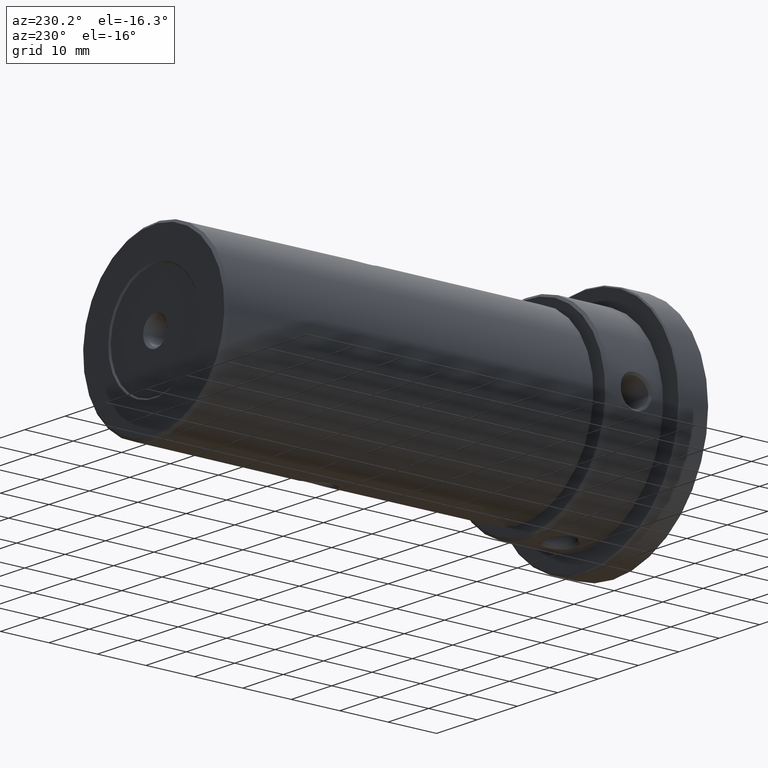
[diagram: clean part render]
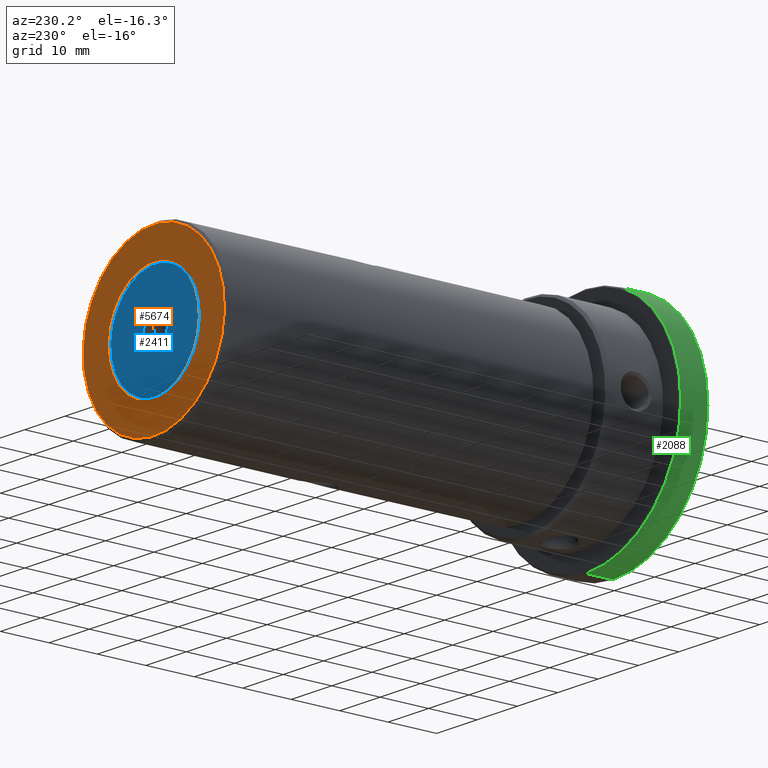
[diagram: same view with three faces highlighted in distinct colors, each labeled with its STEP entity id]
A machine part, auxiliary view with three faces highlighted in distinct colors.
Their STEP definitions:

[orange] entity #5674 — the highlighted planar face has unit normal (0, 1, 0).
#495 = PLANE ( 'NONE',  #2610 ) ;
#550 = FACE_OUTER_BOUND ( 'NONE', #5143, .T. ) ;
#568 = EDGE_CURVE ( 'NONE', #11479, #4742, #7038, .T. ) ;
#686 = CARTESIAN_POINT ( 'NONE',  ( 0.000000000000000000, 38.10000000000000142, 0.000000000000000000 ) ) ;
#698 = AXIS2_PLACEMENT_3D ( 'NONE', #9571, #5811, #7854 ) ;
#786 = CARTESIAN_POINT ( 'NONE',  ( 0.000000000000000000, 38.10000000000000142, 0.000000000000000000 ) ) ;
#1166 = AXIS2_PLACEMENT_3D ( 'NONE', #786, #7296, #11090 ) ;
#1642 = DIRECTION ( 'NONE',  ( 0.000000000000000000, 1.000000000000000000, 0.000000000000000000 ) ) ;
#1920 = EDGE_CURVE ( 'NONE', #8332, #7096, #10190, .T. ) ;
#2119 = CARTESIAN_POINT ( 'NONE',  ( 0.000000000000000000, 38.10000000000000142, 11.30000000000000426 ) ) ;
#2603 = CIRCLE ( 'NONE', #5530, 11.30000000000000426 ) ;
#2610 = AXIS2_PLACEMENT_3D ( 'NONE', #9777, #5952, #11661 ) ;
#3268 = DIRECTION ( 'NONE',  ( -0.000000000000000000, -1.000000000000000000, -0.000000000000000000 ) ) ;
#3366 = ORIENTED_EDGE ( 'NONE', *, *, #11658, .T. ) ;
#3460 = EDGE_LOOP ( 'NONE', ( #10479, #8734 ) ) ;
#4019 = ORIENTED_EDGE ( 'NONE', *, *, #1920, .T. ) ;
#4742 = VERTEX_POINT ( 'NONE', #11925 ) ;
#4914 = CARTESIAN_POINT ( 'NONE',  ( 2.173748068486552430E-15, 38.10000000000000142, 17.50000000000001066 ) ) ;
#5143 = EDGE_LOOP ( 'NONE', ( #4019, #3366 ) ) ;
#5530 = AXIS2_PLACEMENT_3D ( 'NONE', #686, #3268, #11006 ) ;
#5674 = ADVANCED_FACE ( 'NONE', ( #550, #7940 ), #495, .T. ) ;
#5811 = DIRECTION ( 'NONE',  ( 0.000000000000000000, 1.000000000000000000, 0.000000000000000000 ) ) ;
#5952 = DIRECTION ( 'NONE',  ( 0.000000000000000000, 1.000000000000000000, 0.000000000000000000 ) ) ;
#6581 = CIRCLE ( 'NONE', #698, 17.50000000000001066 ) ;
#7038 = CIRCLE ( 'NONE', #1166, 11.30000000000000426 ) ;
#7051 = DIRECTION ( 'NONE',  ( 0.000000000000000000, 0.000000000000000000, 1.000000000000000000 ) ) ;
#7096 = VERTEX_POINT ( 'NONE', #4914 ) ;
#7296 = DIRECTION ( 'NONE',  ( -0.000000000000000000, -1.000000000000000000, -0.000000000000000000 ) ) ;
#7854 = DIRECTION ( 'NONE',  ( 0.000000000000000000, 0.000000000000000000, 1.000000000000000000 ) ) ;
#7940 = FACE_BOUND ( 'NONE', #3460, .T. ) ;
#8332 = VERTEX_POINT ( 'NONE', #11506 ) ;
#8734 = ORIENTED_EDGE ( 'NONE', *, *, #9354, .T. ) ;
#9138 = CARTESIAN_POINT ( 'NONE',  ( 0.000000000000000000, 38.10000000000000142, 0.000000000000000000 ) ) ;
#9354 = EDGE_CURVE ( 'NONE', #4742, #11479, #2603, .T. ) ;
#9409 = AXIS2_PLACEMENT_3D ( 'NONE', #9138, #1642, #7051 ) ;
#9571 = CARTESIAN_POINT ( 'NONE',  ( 0.000000000000000000, 38.10000000000000142, 0.000000000000000000 ) ) ;
#9777 = CARTESIAN_POINT ( 'NONE',  ( 0.000000000000000000, 38.10000000000000142, 0.000000000000000000 ) ) ;
#10190 = CIRCLE ( 'NONE', #9409, 17.50000000000001066 ) ;
#10479 = ORIENTED_EDGE ( 'NONE', *, *, #568, .T. ) ;
#11006 = DIRECTION ( 'NONE',  ( 0.000000000000000000, 0.000000000000000000, 1.000000000000000000 ) ) ;
#11090 = DIRECTION ( 'NONE',  ( 0.000000000000000000, 0.000000000000000000, 1.000000000000000000 ) ) ;
#11479 = VERTEX_POINT ( 'NONE', #2119 ) ;
#11506 = CARTESIAN_POINT ( 'NONE',  ( 0.000000000000000000, 38.10000000000000142, -17.50000000000001066 ) ) ;
#11658 = EDGE_CURVE ( 'NONE', #7096, #8332, #6581, .T. ) ;
#11661 = DIRECTION ( 'NONE',  ( 0.000000000000000000, -0.000000000000000000, 1.000000000000000000 ) ) ;
#11925 = CARTESIAN_POINT ( 'NONE',  ( 1.383850883036509659E-15, 38.10000000000000142, -11.30000000000000426 ) ) ;

[blue] entity #2411 — the highlighted planar face has unit normal (0, 1, 0).
#143 = CIRCLE ( 'NONE', #724, 11.00000000000000178 ) ;
#183 = CARTESIAN_POINT ( 'NONE',  ( 1.365481181049299032E-15, 37.79999999999999716, -11.00000000000000178 ) ) ;
#286 = FACE_OUTER_BOUND ( 'NONE', #5278, .T. ) ;
#337 = VERTEX_POINT ( 'NONE', #7058 ) ;
#716 = CARTESIAN_POINT ( 'NONE',  ( 0.000000000000000000, 37.79999999999999716, 0.000000000000000000 ) ) ;
#724 = AXIS2_PLACEMENT_3D ( 'NONE', #11427, #2966, #7828 ) ;
#832 = EDGE_CURVE ( 'NONE', #1260, #6029, #5859, .T. ) ;
#1260 = VERTEX_POINT ( 'NONE', #4919 ) ;
#1336 = DIRECTION ( 'NONE',  ( 0.000000000000000000, 0.000000000000000000, 1.000000000000000000 ) ) ;
#1466 = CARTESIAN_POINT ( 'NONE',  ( 0.000000000000000000, 37.79999999999999716, 0.000000000000000000 ) ) ;
#1555 = VERTEX_POINT ( 'NONE', #183 ) ;
#2041 = EDGE_CURVE ( 'NONE', #337, #1555, #8233, .T. ) ;
#2411 = ADVANCED_FACE ( 'NONE', ( #5867, #286 ), #3102, .T. ) ;
#2966 = DIRECTION ( 'NONE',  ( 0.000000000000000000, 1.000000000000000000, 0.000000000000000000 ) ) ;
#3102 = PLANE ( 'NONE',  #7979 ) ;
#3308 = AXIS2_PLACEMENT_3D ( 'NONE', #7098, #10841, #1336 ) ;
#4304 = EDGE_CURVE ( 'NONE', #6029, #1260, #9547, .T. ) ;
#4378 = CARTESIAN_POINT ( 'NONE',  ( 3.673940397442062826E-16, 37.79999999999999716, -3.000000000000002665 ) ) ;
#4919 = CARTESIAN_POINT ( 'NONE',  ( 0.000000000000000000, 37.79999999999999716, 3.000000000000002665 ) ) ;
#5278 = EDGE_LOOP ( 'NONE', ( #11411, #5804 ) ) ;
#5604 = AXIS2_PLACEMENT_3D ( 'NONE', #1466, #10123, #7232 ) ;
#5804 = ORIENTED_EDGE ( 'NONE', *, *, #10012, .T. ) ;
#5859 = CIRCLE ( 'NONE', #3308, 3.000000000000002665 ) ;
#5867 = FACE_BOUND ( 'NONE', #8883, .T. ) ;
#6029 = VERTEX_POINT ( 'NONE', #4378 ) ;
#6389 = ORIENTED_EDGE ( 'NONE', *, *, #832, .T. ) ;
#7058 = CARTESIAN_POINT ( 'NONE',  ( 0.000000000000000000, 37.79999999999999716, 11.00000000000000178 ) ) ;
#7098 = CARTESIAN_POINT ( 'NONE',  ( 0.000000000000000000, 37.79999999999999716, 0.000000000000000000 ) ) ;
#7232 = DIRECTION ( 'NONE',  ( 0.000000000000000000, 0.000000000000000000, 1.000000000000000000 ) ) ;
#7828 = DIRECTION ( 'NONE',  ( 0.000000000000000000, 0.000000000000000000, 1.000000000000000000 ) ) ;
#7979 = AXIS2_PLACEMENT_3D ( 'NONE', #11511, #11336, #10656 ) ;
#8162 = DIRECTION ( 'NONE',  ( 0.000000000000000000, 1.000000000000000000, 0.000000000000000000 ) ) ;
#8221 = DIRECTION ( 'NONE',  ( 0.000000000000000000, 0.000000000000000000, 1.000000000000000000 ) ) ;
#8233 = CIRCLE ( 'NONE', #11123, 11.00000000000000178 ) ;
#8883 = EDGE_LOOP ( 'NONE', ( #6389, #10626 ) ) ;
#9547 = CIRCLE ( 'NONE', #5604, 3.000000000000002665 ) ;
#10012 = EDGE_CURVE ( 'NONE', #1555, #337, #143, .T. ) ;
#10123 = DIRECTION ( 'NONE',  ( -0.000000000000000000, -1.000000000000000000, -0.000000000000000000 ) ) ;
#10626 = ORIENTED_EDGE ( 'NONE', *, *, #4304, .T. ) ;
#10656 = DIRECTION ( 'NONE',  ( 0.000000000000000000, -0.000000000000000000, 1.000000000000000000 ) ) ;
#10841 = DIRECTION ( 'NONE',  ( -0.000000000000000000, -1.000000000000000000, -0.000000000000000000 ) ) ;
#11123 = AXIS2_PLACEMENT_3D ( 'NONE', #716, #8162, #8221 ) ;
#11336 = DIRECTION ( 'NONE',  ( 0.000000000000000000, 1.000000000000000000, 0.000000000000000000 ) ) ;
#11411 = ORIENTED_EDGE ( 'NONE', *, *, #2041, .T. ) ;
#11427 = CARTESIAN_POINT ( 'NONE',  ( 0.000000000000000000, 37.79999999999999716, 0.000000000000000000 ) ) ;
#11511 = CARTESIAN_POINT ( 'NONE',  ( 0.000000000000000000, 37.79999999999999716, 0.000000000000000000 ) ) ;

[green] entity #2088 — the highlighted cylindrical surface (partial cylindrical patch) has radius 23.5 mm, axis along (-0, -1, -0).
#611 = EDGE_CURVE ( 'NONE', #6753, #11187, #11034, .T. ) ;
#701 = VERTEX_POINT ( 'NONE', #3342 ) ;
#841 = DIRECTION ( 'NONE',  ( 0.000000000000000000, 0.000000000000000000, -1.000000000000000000 ) ) ;
#1725 = DIRECTION ( 'NONE',  ( 0.000000000000000000, 0.000000000000000000, 1.000000000000000000 ) ) ;
#1818 = CARTESIAN_POINT ( 'NONE',  ( 0.000000000000000000, 6.099999999999999645, 0.000000000000000000 ) ) ;
#2088 = ADVANCED_FACE ( 'NONE', ( #8952 ), #5560, .T. ) ;
#3301 = DIRECTION ( 'NONE',  ( -0.000000000000000000, 1.000000000000000000, -0.000000000000000000 ) ) ;
#3342 = CARTESIAN_POINT ( 'NONE',  ( 0.000000000000000000, 0.2500000000000002220, -23.49999999999999645 ) ) ;
#3359 = CARTESIAN_POINT ( 'NONE',  ( 0.000000000000000000, 0.2500000000000002220, 0.000000000000000000 ) ) ;
#3385 = CIRCLE ( 'NONE', #4181, 23.49999999999999645 ) ;
#3696 = VECTOR ( 'NONE', #11160, 1000.000000000000000 ) ;
#3774 = ORIENTED_EDGE ( 'NONE', *, *, #6923, .T. ) ;
#3871 = LINE ( 'NONE', #9535, #7995 ) ;
#4181 = AXIS2_PLACEMENT_3D ( 'NONE', #8249, #11054, #1725 ) ;
#4586 = CARTESIAN_POINT ( 'NONE',  ( 2.877919977996279531E-15, 0.2500000000000002220, 23.49999999999999645 ) ) ;
#4956 = AXIS2_PLACEMENT_3D ( 'NONE', #3359, #3301, #7059 ) ;
#5065 = VERTEX_POINT ( 'NONE', #11972 ) ;
#5377 = EDGE_CURVE ( 'NONE', #5065, #701, #3871, .T. ) ;
#5560 = CYLINDRICAL_SURFACE ( 'NONE', #7204, 23.49999999999999645 ) ;
#5654 = DIRECTION ( 'NONE',  ( -0.000000000000000000, -1.000000000000000000, -0.000000000000000000 ) ) ;
#6186 = CARTESIAN_POINT ( 'NONE',  ( 2.877919977996279531E-15, 5.849999999999992539, 23.49999999999999645 ) ) ;
#6753 = VERTEX_POINT ( 'NONE', #6186 ) ;
#6923 = EDGE_CURVE ( 'NONE', #701, #11187, #10257, .T. ) ;
#7059 = DIRECTION ( 'NONE',  ( 0.000000000000000000, 0.000000000000000000, 1.000000000000000000 ) ) ;
#7204 = AXIS2_PLACEMENT_3D ( 'NONE', #1818, #7414, #841 ) ;
#7218 = ORIENTED_EDGE ( 'NONE', *, *, #8058, .T. ) ;
#7414 = DIRECTION ( 'NONE',  ( -0.000000000000000000, -1.000000000000000000, -0.000000000000000000 ) ) ;
#7422 = CARTESIAN_POINT ( 'NONE',  ( 2.877919977996279531E-15, 6.099999999999999645, 23.49999999999999645 ) ) ;
#7995 = VECTOR ( 'NONE', #5654, 1000.000000000000000 ) ;
#8058 = EDGE_CURVE ( 'NONE', #6753, #5065, #3385, .T. ) ;
#8249 = CARTESIAN_POINT ( 'NONE',  ( 0.000000000000000000, 5.849999999999992539, 0.000000000000000000 ) ) ;
#8952 = FACE_OUTER_BOUND ( 'NONE', #11868, .T. ) ;
#9535 = CARTESIAN_POINT ( 'NONE',  ( 0.000000000000000000, 6.099999999999999645, -23.49999999999999645 ) ) ;
#10257 = CIRCLE ( 'NONE', #4956, 23.49999999999999645 ) ;
#10704 = ORIENTED_EDGE ( 'NONE', *, *, #611, .F. ) ;
#11034 = LINE ( 'NONE', #7422, #3696 ) ;
#11054 = DIRECTION ( 'NONE',  ( 0.000000000000000000, -1.000000000000000000, 0.000000000000000000 ) ) ;
#11062 = ORIENTED_EDGE ( 'NONE', *, *, #5377, .T. ) ;
#11160 = DIRECTION ( 'NONE',  ( -0.000000000000000000, -1.000000000000000000, -0.000000000000000000 ) ) ;
#11187 = VERTEX_POINT ( 'NONE', #4586 ) ;
#11868 = EDGE_LOOP ( 'NONE', ( #10704, #7218, #11062, #3774 ) ) ;
#11972 = CARTESIAN_POINT ( 'NONE',  ( 0.000000000000000000, 5.849999999999992539, -23.49999999999999645 ) ) ;